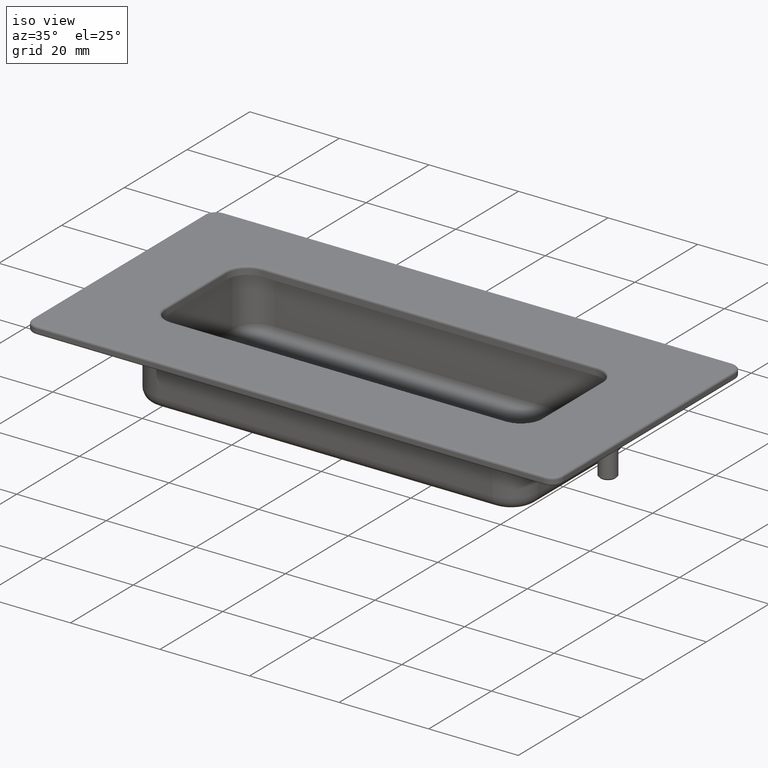
[diagram: clean part render]
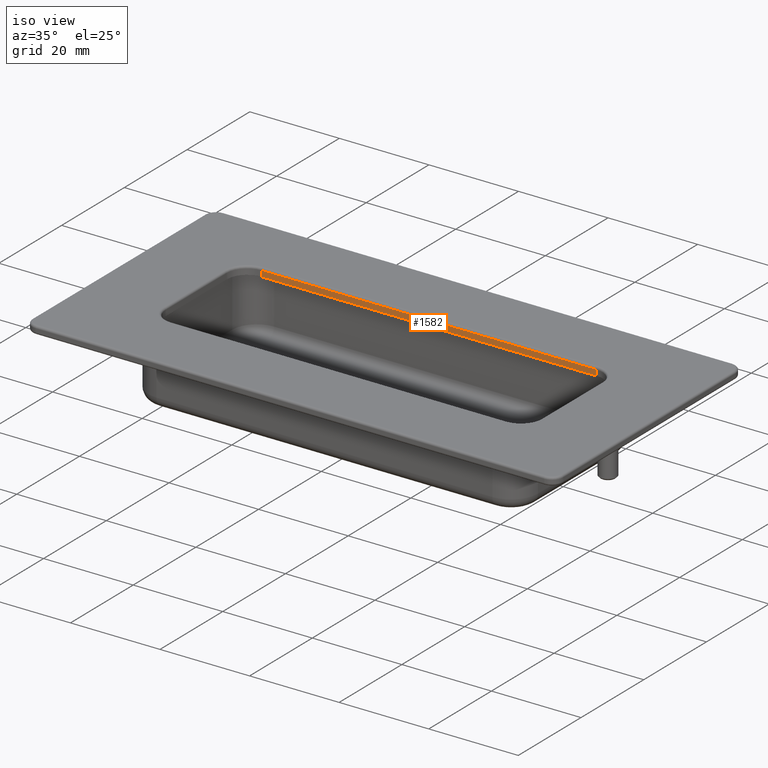
[diagram: same view with one face highlighted and labeled with its STEP entity id]
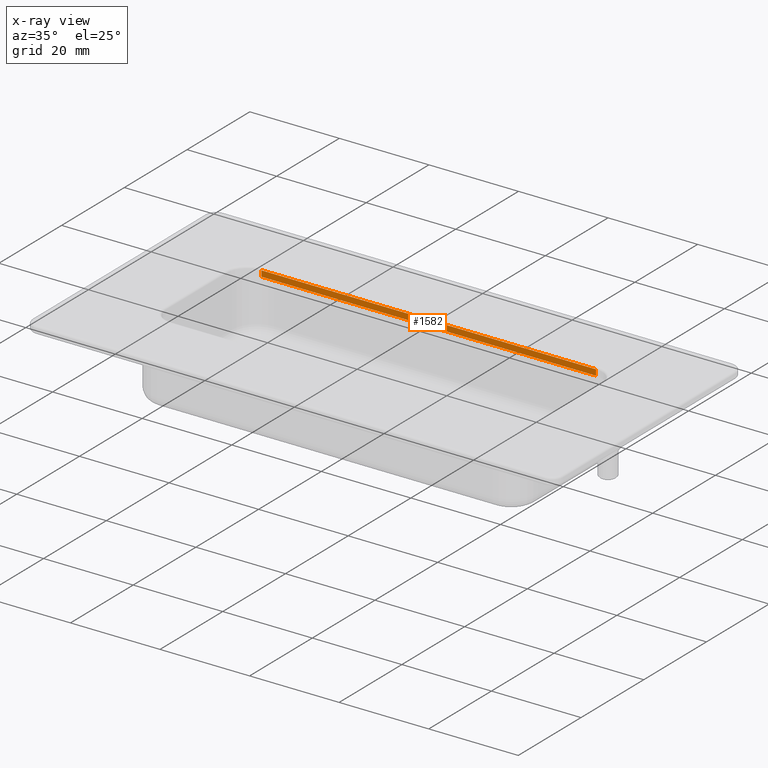
[diagram: x-ray of the same camera — body ghosted, the highlighted face saturated]
A machine part, iso view. The second image highlights one B-rep face of the part: STEP entity #1582.
The next image is the same camera in x-ray: the body ghosted, the highlighted face saturated — about 0% of this face is hidden behind the body in this view.
In plain terms, the highlighted planar face has unit normal (0, -1, 0).
Its self-contained STEP definition (entity closure, byte-faithful):
#119=LINE('',#2614,#223);
#126=LINE('',#2631,#230);
#166=LINE('',#2813,#270);
#167=LINE('',#2815,#271);
#223=VECTOR('',#2101,74.8);
#230=VECTOR('',#2118,1.3);
#270=VECTOR('',#2346,1.3);
#271=VECTOR('',#2349,74.8);
#299=PLANE('',#1805);
#412=FACE_OUTER_BOUND('',#525,.T.);
#525=EDGE_LOOP('',(#1430,#1431,#1432,#1433));
#717=VERTEX_POINT('',#2569);
#730=VERTEX_POINT('',#2607);
#736=VERTEX_POINT('',#2630);
#784=VERTEX_POINT('',#2811);
#907=EDGE_CURVE('',#730,#717,#119,.T.);
#915=EDGE_CURVE('',#717,#736,#126,.T.);
#1005=EDGE_CURVE('',#730,#784,#166,.T.);
#1006=EDGE_CURVE('',#736,#784,#167,.T.);
#1430=ORIENTED_EDGE('',*,*,#907,.F.);
#1431=ORIENTED_EDGE('',*,*,#1005,.T.);
#1432=ORIENTED_EDGE('',*,*,#1006,.F.);
#1433=ORIENTED_EDGE('',*,*,#915,.F.);
#1582=ADVANCED_FACE('',(#412),#299,.T.);
#1805=AXIS2_PLACEMENT_3D('',#2814,#2347,#2348);
#2101=DIRECTION('',(1.,0.,0.));
#2118=DIRECTION('',(0.,0.,-1.));
#2346=DIRECTION('',(0.,0.,-1.));
#2347=DIRECTION('center_axis',(0.,-1.,0.));
#2348=DIRECTION('ref_axis',(-1.,0.,0.));
#2349=DIRECTION('',(-1.,0.,0.));
#2569=CARTESIAN_POINT('',(37.4,14.25,-0.5));
#2607=CARTESIAN_POINT('',(-37.4,14.25,-0.5));
#2614=CARTESIAN_POINT('',(18.7,14.25,-0.5));
#2630=CARTESIAN_POINT('',(37.4,14.25,-1.8));
#2631=CARTESIAN_POINT('',(37.4,14.25,0.));
#2811=CARTESIAN_POINT('',(-37.4,14.25,-1.8));
#2813=CARTESIAN_POINT('',(-37.4,14.25,0.));
#2814=CARTESIAN_POINT('Origin',(37.4,14.25,0.));
#2815=CARTESIAN_POINT('',(-37.4,14.25,-1.8));